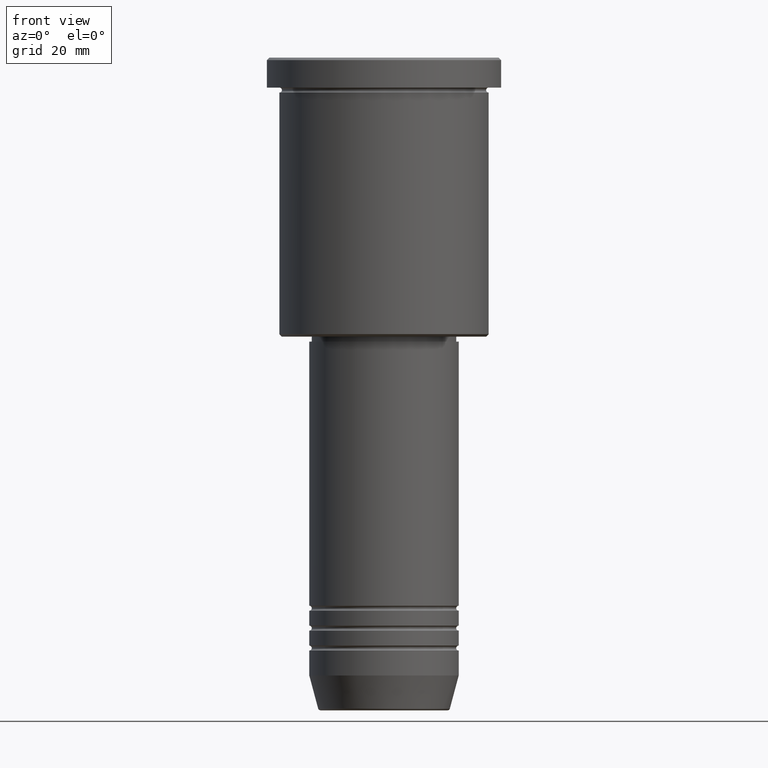
[diagram: clean part render]
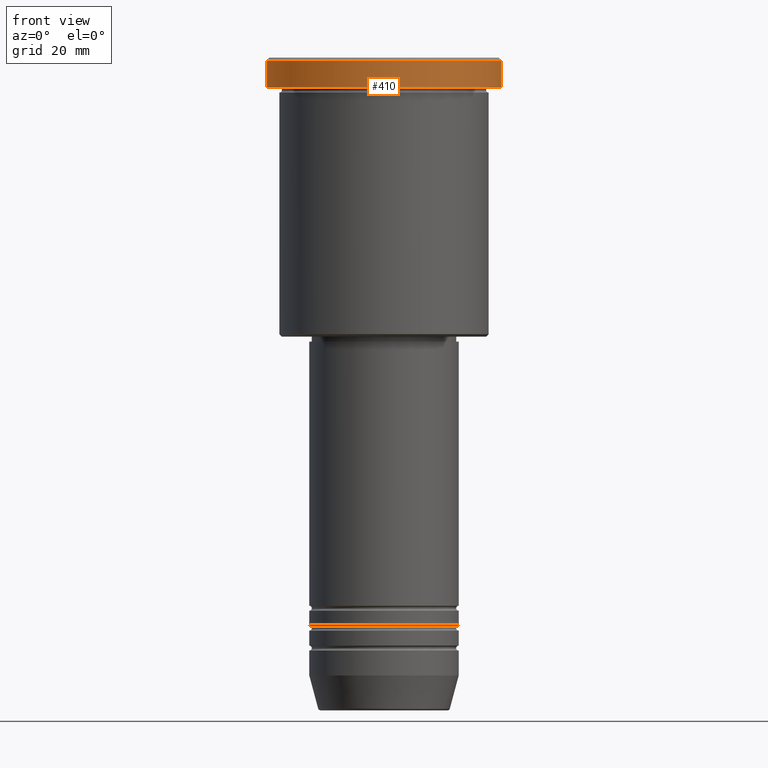
[diagram: same view with one face highlighted and labeled with its STEP entity id]
A machine part, front view. The second image highlights one B-rep face of the part: STEP entity #410.
In plain terms, the highlighted cylindrical surface (partial cylindrical patch) has radius 23.5 mm, axis along (-0, -0, 1).
Its self-contained STEP definition (entity closure, byte-faithful):
#71 = DIRECTION ( 'NONE',  ( 1.000000000000000000, 0.000000000000000000, 0.000000000000000000 ) ) ;
#149 = CARTESIAN_POINT ( 'NONE',  ( -23.50000000000000000, 2.877919977996280320E-15, -5.999999999999993783 ) ) ;
#170 = DIRECTION ( 'NONE',  ( 0.000000000000000000, 0.000000000000000000, -1.000000000000000000 ) ) ;
#190 = DIRECTION ( 'NONE',  ( 1.000000000000000000, 0.000000000000000000, 0.000000000000000000 ) ) ;
#247 = CIRCLE ( 'NONE', #982, 23.50000000000000000 ) ;
#248 = FACE_OUTER_BOUND ( 'NONE', #960, .T. ) ;
#321 = EDGE_CURVE ( 'NONE', #380, #833, #897, .T. ) ;
#327 = ORIENTED_EDGE ( 'NONE', *, *, #991, .T. ) ;
#351 = EDGE_CURVE ( 'NONE', #833, #1076, #866, .T. ) ;
#380 = VERTEX_POINT ( 'NONE', #630 ) ;
#410 = ADVANCED_FACE ( 'NONE', ( #248 ), #695, .T. ) ;
#441 = CARTESIAN_POINT ( 'NONE',  ( 23.50000000000000000, 0.000000000000000000, 0.000000000000000000 ) ) ;
#456 = CARTESIAN_POINT ( 'NONE',  ( -23.50000000000000000, 2.877919977996280320E-15, -0.5000000000000143219 ) ) ;
#630 = CARTESIAN_POINT ( 'NONE',  ( 23.50000000000000000, 0.000000000000000000, -5.999999999999993783 ) ) ;
#639 = VECTOR ( 'NONE', #1065, 1000.000000000000000 ) ;
#659 = EDGE_CURVE ( 'NONE', #899, #1076, #706, .T. ) ;
#675 = DIRECTION ( 'NONE',  ( 1.000000000000000000, 0.000000000000000000, 0.000000000000000000 ) ) ;
#689 = DIRECTION ( 'NONE',  ( -0.000000000000000000, -0.000000000000000000, 1.000000000000000000 ) ) ;
#695 = CYLINDRICAL_SURFACE ( 'NONE', #1078, 23.50000000000000000 ) ;
#706 = LINE ( 'NONE', #1074, #733 ) ;
#733 = VECTOR ( 'NONE', #786, 1000.000000000000000 ) ;
#768 = AXIS2_PLACEMENT_3D ( 'NONE', #885, #170, #71 ) ;
#786 = DIRECTION ( 'NONE',  ( -0.000000000000000000, -0.000000000000000000, 1.000000000000000000 ) ) ;
#794 = ORIENTED_EDGE ( 'NONE', *, *, #321, .T. ) ;
#833 = VERTEX_POINT ( 'NONE', #1056 ) ;
#866 = CIRCLE ( 'NONE', #768, 23.50000000000000000 ) ;
#875 = ORIENTED_EDGE ( 'NONE', *, *, #659, .F. ) ;
#881 = ORIENTED_EDGE ( 'NONE', *, *, #351, .T. ) ;
#885 = CARTESIAN_POINT ( 'NONE',  ( 0.000000000000000000, 0.000000000000000000, -0.5000000000000143219 ) ) ;
#897 = LINE ( 'NONE', #441, #639 ) ;
#899 = VERTEX_POINT ( 'NONE', #149 ) ;
#904 = CARTESIAN_POINT ( 'NONE',  ( 0.000000000000000000, 0.000000000000000000, -5.999999999999993783 ) ) ;
#960 = EDGE_LOOP ( 'NONE', ( #875, #327, #794, #881 ) ) ;
#982 = AXIS2_PLACEMENT_3D ( 'NONE', #904, #1000, #190 ) ;
#991 = EDGE_CURVE ( 'NONE', #899, #380, #247, .T. ) ;
#1000 = DIRECTION ( 'NONE',  ( -0.000000000000000000, -0.000000000000000000, 1.000000000000000000 ) ) ;
#1056 = CARTESIAN_POINT ( 'NONE',  ( 23.50000000000000000, 0.000000000000000000, -0.5000000000000143219 ) ) ;
#1065 = DIRECTION ( 'NONE',  ( -0.000000000000000000, -0.000000000000000000, 1.000000000000000000 ) ) ;
#1074 = CARTESIAN_POINT ( 'NONE',  ( -23.50000000000000000, 2.877919977996280320E-15, 0.000000000000000000 ) ) ;
#1076 = VERTEX_POINT ( 'NONE', #456 ) ;
#1078 = AXIS2_PLACEMENT_3D ( 'NONE', #1132, #689, #675 ) ;
#1132 = CARTESIAN_POINT ( 'NONE',  ( 0.000000000000000000, 0.000000000000000000, 0.000000000000000000 ) ) ;